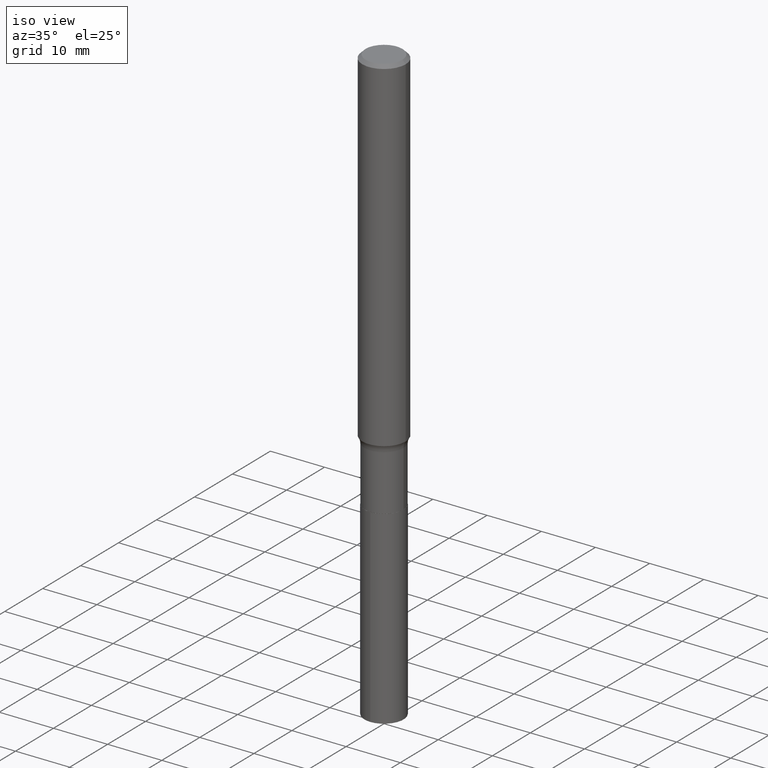
[diagram: clean part render]
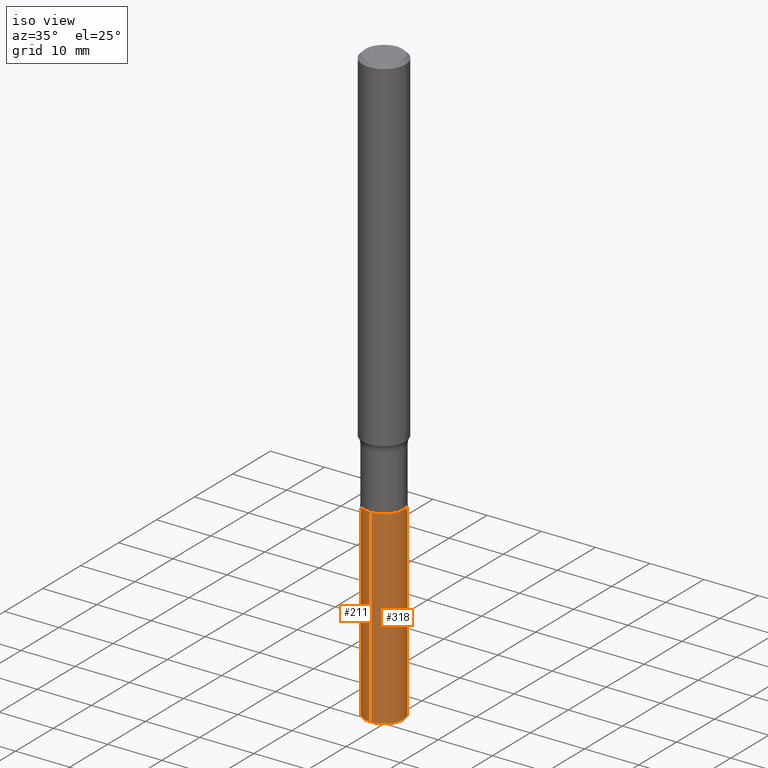
[diagram: same view with one multi-face feature highlighted, each face labeled with its STEP entity id]
A machine part, iso view. The highlighted faces form ONE feature: a constant-radius fillet chain: 2 tangent blend faces with common blend radius 3.6004 mm. The faces share edges in the B-rep.
Their STEP definitions:
[1] entity #318 (Cylinder):
#12 = VERTEX_POINT ( 'NONE', #385 ) ;
#19 = VECTOR ( 'NONE', #223, 39.37007874015748143 ) ;
#43 = DIRECTION ( 'NONE',  ( -2.445418050477662264E-29, 3.491554023905084110E-15, 1.000000000000000000 ) ) ;
#72 = CIRCLE ( 'NONE', #344, 0.1417499999999999871 ) ;
#77 = CARTESIAN_POINT ( 'NONE',  ( 7.220735744022853640E-29, -1.030929694920215659E-14, -2.952700000000000546 ) ) ;
#78 = VERTEX_POINT ( 'NONE', #284 ) ;
#87 = AXIS2_PLACEMENT_3D ( 'NONE', #200, #282, #286 ) ;
#111 = CARTESIAN_POINT ( 'NONE',  ( -9.898349595619558415E-16, -0.1417500000000102844, -2.952700000000000102 ) ) ;
#123 = DIRECTION ( 'NONE',  ( -6.982962677686265133E-15, -1.000000000000000000, 3.854459250319948630E-15 ) ) ;
#124 = EDGE_CURVE ( 'NONE', #409, #12, #295, .T. ) ;
#126 = VERTEX_POINT ( 'NONE', #391 ) ;
#178 = LINE ( 'NONE', #111, #281 ) ;
#179 = ORIENTED_EDGE ( 'NONE', *, *, #203, .T. ) ;
#199 = CARTESIAN_POINT ( 'NONE',  ( 1.059052181758106979E-28, -1.512065839414336189E-14, -4.330699999999999328 ) ) ;
#200 = CARTESIAN_POINT ( 'NONE',  ( 7.220735744022853640E-29, -1.030929694920215659E-14, -2.952700000000000546 ) ) ;
#203 = EDGE_CURVE ( 'NONE', #78, #126, #72, .T. ) ;
#215 = CYLINDRICAL_SURFACE ( 'NONE', #316, 0.1417499999999999871 ) ;
#216 = ORIENTED_EDGE ( 'NONE', *, *, #408, .T. ) ;
#223 = DIRECTION ( 'NONE',  ( -2.445418050477662264E-29, 3.491554023905084110E-15, 1.000000000000000000 ) ) ;
#224 = ORIENTED_EDGE ( 'NONE', *, *, #238, .F. ) ;
#230 = CARTESIAN_POINT ( 'NONE',  ( 1.007194327940013906E-15, 0.1417499999999896620, -2.952700000000000990 ) ) ;
#238 = EDGE_CURVE ( 'NONE', #78, #409, #178, .T. ) ;
#261 = EDGE_LOOP ( 'NONE', ( #179, #216, #305, #224 ) ) ;
#277 = DIRECTION ( 'NONE',  ( -2.445418050477662264E-29, 3.491554023905084110E-15, 1.000000000000000000 ) ) ;
#281 = VECTOR ( 'NONE', #43, 39.37007874015748143 ) ;
#282 = DIRECTION ( 'NONE',  ( -2.445418050477662264E-29, 3.491554023905084110E-15, 1.000000000000000000 ) ) ;
#284 = CARTESIAN_POINT ( 'NONE',  ( -9.898349595619221177E-16, -0.1417500000000151139, -4.330699999999998440 ) ) ;
#286 = DIRECTION ( 'NONE',  ( -6.982962677686265133E-15, -1.000000000000000000, 3.854459250319948630E-15 ) ) ;
#295 = CIRCLE ( 'NONE', #87, 0.1417499999999999871 ) ;
#305 = ORIENTED_EDGE ( 'NONE', *, *, #124, .F. ) ;
#306 = FACE_OUTER_BOUND ( 'NONE', #261, .T. ) ;
#308 = DIRECTION ( 'NONE',  ( -2.445418050477662264E-29, 3.491554023905084110E-15, 1.000000000000000000 ) ) ;
#314 = CARTESIAN_POINT ( 'NONE',  ( -9.898349595619558415E-16, -0.1417500000000102844, -2.952700000000000102 ) ) ;
#316 = AXIS2_PLACEMENT_3D ( 'NONE', #77, #308, #123 ) ;
#318 = ADVANCED_FACE ( 'NONE', ( #306 ), #215, .T. ) ;
#321 = DIRECTION ( 'NONE',  ( -6.982962677686265133E-15, -1.000000000000000000, 3.854459250319948630E-15 ) ) ;
#344 = AXIS2_PLACEMENT_3D ( 'NONE', #199, #277, #321 ) ;
#385 = CARTESIAN_POINT ( 'NONE',  ( 1.007194327940047827E-15, 0.1417499999999896620, -2.952700000000000990 ) ) ;
#391 = CARTESIAN_POINT ( 'NONE',  ( 1.007194327940030866E-15, 0.1417499999999848603, -4.330700000000000216 ) ) ;
#408 = EDGE_CURVE ( 'NONE', #126, #12, #413, .T. ) ;
#409 = VERTEX_POINT ( 'NONE', #314 ) ;
#413 = LINE ( 'NONE', #230, #19 ) ;
[2] entity #211 (Cylinder):
#12 = VERTEX_POINT ( 'NONE', #385 ) ;
#17 = DIRECTION ( 'NONE',  ( -2.445418050477662264E-29, 3.491554023905084110E-15, 1.000000000000000000 ) ) ;
#19 = VECTOR ( 'NONE', #223, 39.37007874015748143 ) ;
#43 = DIRECTION ( 'NONE',  ( -2.445418050477662264E-29, 3.491554023905084110E-15, 1.000000000000000000 ) ) ;
#55 = DIRECTION ( 'NONE',  ( -6.982962677686265133E-15, -1.000000000000000000, 3.854459250319948630E-15 ) ) ;
#58 = DIRECTION ( 'NONE',  ( -6.982962677686265133E-15, -1.000000000000000000, 3.854459250319948630E-15 ) ) ;
#76 = ORIENTED_EDGE ( 'NONE', *, *, #213, .F. ) ;
#78 = VERTEX_POINT ( 'NONE', #284 ) ;
#89 = FACE_OUTER_BOUND ( 'NONE', #429, .T. ) ;
#91 = CARTESIAN_POINT ( 'NONE',  ( 1.059052181758106979E-28, -1.512065839414336189E-14, -4.330699999999999328 ) ) ;
#102 = ORIENTED_EDGE ( 'NONE', *, *, #104, .T. ) ;
#104 = EDGE_CURVE ( 'NONE', #126, #78, #250, .T. ) ;
#108 = CIRCLE ( 'NONE', #136, 0.1417499999999999871 ) ;
#111 = CARTESIAN_POINT ( 'NONE',  ( -9.898349595619558415E-16, -0.1417500000000102844, -2.952700000000000102 ) ) ;
#126 = VERTEX_POINT ( 'NONE', #391 ) ;
#129 = AXIS2_PLACEMENT_3D ( 'NONE', #350, #17, #55 ) ;
#136 = AXIS2_PLACEMENT_3D ( 'NONE', #398, #304, #142 ) ;
#142 = DIRECTION ( 'NONE',  ( -6.982962677686265133E-15, -1.000000000000000000, 3.854459250319948630E-15 ) ) ;
#178 = LINE ( 'NONE', #111, #281 ) ;
#211 = ADVANCED_FACE ( 'NONE', ( #89 ), #239, .T. ) ;
#213 = EDGE_CURVE ( 'NONE', #12, #409, #108, .T. ) ;
#223 = DIRECTION ( 'NONE',  ( -2.445418050477662264E-29, 3.491554023905084110E-15, 1.000000000000000000 ) ) ;
#230 = CARTESIAN_POINT ( 'NONE',  ( 1.007194327940013906E-15, 0.1417499999999896620, -2.952700000000000990 ) ) ;
#238 = EDGE_CURVE ( 'NONE', #78, #409, #178, .T. ) ;
#239 = CYLINDRICAL_SURFACE ( 'NONE', #129, 0.1417499999999999871 ) ;
#241 = DIRECTION ( 'NONE',  ( -2.445418050477662264E-29, 3.491554023905084110E-15, 1.000000000000000000 ) ) ;
#250 = CIRCLE ( 'NONE', #367, 0.1417499999999999871 ) ;
#281 = VECTOR ( 'NONE', #43, 39.37007874015748143 ) ;
#284 = CARTESIAN_POINT ( 'NONE',  ( -9.898349595619221177E-16, -0.1417500000000151139, -4.330699999999998440 ) ) ;
#302 = ORIENTED_EDGE ( 'NONE', *, *, #408, .F. ) ;
#304 = DIRECTION ( 'NONE',  ( -2.445418050477662264E-29, 3.491554023905084110E-15, 1.000000000000000000 ) ) ;
#314 = CARTESIAN_POINT ( 'NONE',  ( -9.898349595619558415E-16, -0.1417500000000102844, -2.952700000000000102 ) ) ;
#350 = CARTESIAN_POINT ( 'NONE',  ( 7.220735744022853640E-29, -1.030929694920215659E-14, -2.952700000000000546 ) ) ;
#367 = AXIS2_PLACEMENT_3D ( 'NONE', #91, #241, #58 ) ;
#385 = CARTESIAN_POINT ( 'NONE',  ( 1.007194327940047827E-15, 0.1417499999999896620, -2.952700000000000990 ) ) ;
#391 = CARTESIAN_POINT ( 'NONE',  ( 1.007194327940030866E-15, 0.1417499999999848603, -4.330700000000000216 ) ) ;
#398 = CARTESIAN_POINT ( 'NONE',  ( 7.220735744022853640E-29, -1.030929694920215659E-14, -2.952700000000000546 ) ) ;
#403 = ORIENTED_EDGE ( 'NONE', *, *, #238, .T. ) ;
#408 = EDGE_CURVE ( 'NONE', #126, #12, #413, .T. ) ;
#409 = VERTEX_POINT ( 'NONE', #314 ) ;
#413 = LINE ( 'NONE', #230, #19 ) ;
#429 = EDGE_LOOP ( 'NONE', ( #302, #102, #403, #76 ) ) ;